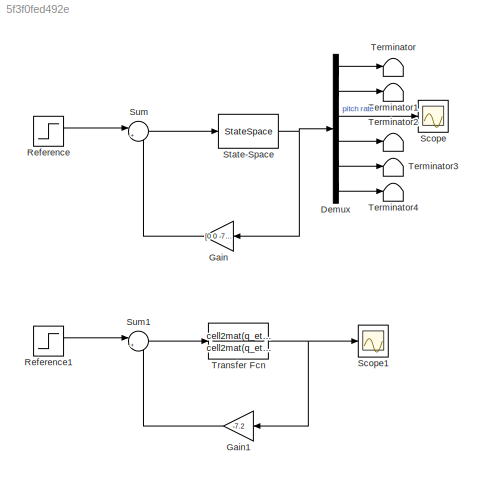
MODEL slx_5f3f0fed492e
KIND model
CONFIG AbsTol = auto
CONFIG EnableMultiTasking = off
CONFIG FixedStep = auto
CONFIG MaxStep = auto
CONFIG MinStep = auto
CONFIG RelTol = 1e-3
CONFIG SampleTimeConstraint = Unconstrained
CONFIG Solver = VariableStepAuto
CONFIG SolverName = VariableStepAuto
CONFIG StartTime = 0.0
CONFIG StopTime = 10
BLOCK [Demux] Demux
  Outputs = 6
  Ports = [1, 6]
BLOCK [Gain] Gain
  Gain = [0 0 -7.2 0 0 0]
  Multiplication = Matrix(K*u)
BLOCK [Gain] Gain1
  Gain = -7.2
BLOCK [Step] Reference
  After = deg2rad(1)
  SampleTime = 0
  Time = 0
BLOCK [Step] Reference1
  After = deg2rad(1)
  SampleTime = 0
  Time = 0
BLOCK [Scope] Scope
  Floating = off
  NumInputPorts = 1
  Ports = [1]
  ScopeSpecificationString = Simulink.scopes.TimeScopeBlockCfg('CurrentConfiguration', extmgr.ConfigurationSet(extmgr.Configuration('Core','General UI',true),extmgr.Configuration('Core','Source UI',true),extmgr.Configuration('Sources','WiredSimulink',true),extmgr.Configuration('Visuals','Time Domain',true,'SerializedDisplays',{struct('MinYLimReal','-0.00268','MaxYLimReal','0.0003','YLabelReal','','MinYLimMag','0.00000','MaxYL...<+1358ch>
BLOCK [Scope] Scope1
  Floating = off
  NumInputPorts = 1
  Ports = [1]
  ScopeSpecificationString = Simulink.scopes.TimeScopeBlockCfg('CurrentConfiguration', extmgr.ConfigurationSet(extmgr.Configuration('Core','General UI',true),extmgr.Configuration('Core','Source UI',true),extmgr.Configuration('Sources','WiredSimulink',true,'DataLoggingVariableName','ScopeData1'),extmgr.Configuration('Visuals','Time Domain',true,'SerializedDisplays',{struct('MinYLimReal','-0.00268','MaxYLimReal','0.0003','YLabe...<+1399ch>
BLOCK [StateSpace] State-Space
  A = A
  B = B
  C = C
  D = D
  InitialCondition = 0
  Ports = [1, 1]
BLOCK [Sum] Sum
  Inputs = |+-
  Ports = [2, 1]
BLOCK [Sum] Sum1
  Inputs = |+-
  Ports = [2, 1]
BLOCK [Terminator] Terminator
BLOCK [Terminator] Terminator1
BLOCK [Terminator] Terminator2
BLOCK [Terminator] Terminator3
BLOCK [Terminator] Terminator4
BLOCK [TransferFcn] Transfer Fcn
  Denominator = cell2mat(q_eta.den)
  Numerator = cell2mat(q_eta.num)
LINE Demux:1 -> Terminator:1
LINE Demux:2 -> Terminator1:1
LINE Demux:3 -> Scope:1
LINE Demux:4 -> Terminator2:1
LINE Demux:5 -> Terminator3:1
LINE Demux:6 -> Terminator4:1
LINE Gain1:1 -> Sum1:2
LINE Gain:1 -> Sum:2
LINE Reference1:1 -> Sum1:1
LINE Reference:1 -> Sum:1
NET State-Space:1 -> Demux:1, Gain:1
LINE Sum1:1 -> Transfer Fcn:1
LINE Sum:1 -> State-Space:1
NET Transfer Fcn:1 -> Gain1:1, Scope1:1
note: NET lines group one-source signal fan-out (src -> all destinations, sorted); 1:1 wires keep LINE
